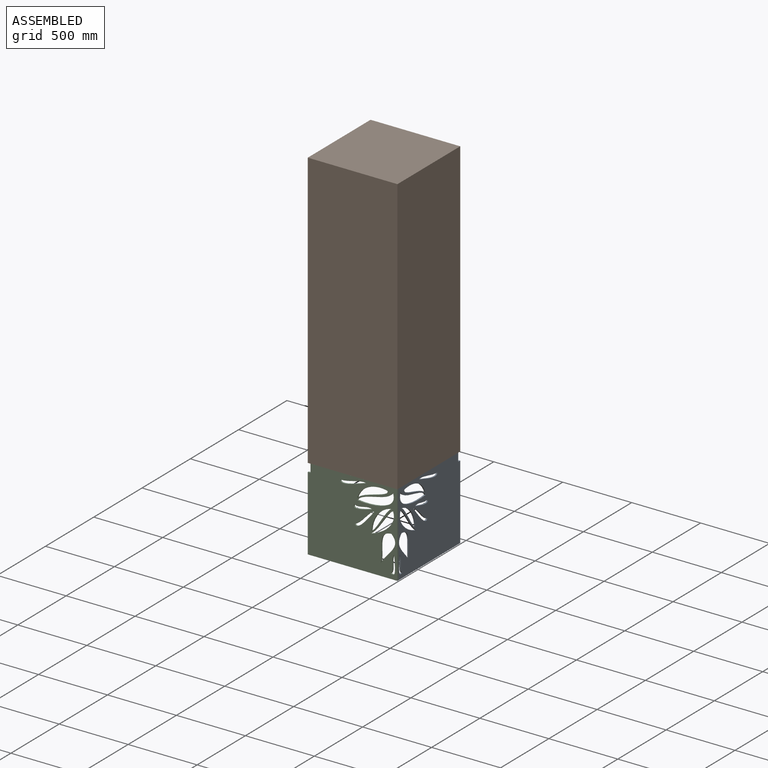
[diagram: assembled view]
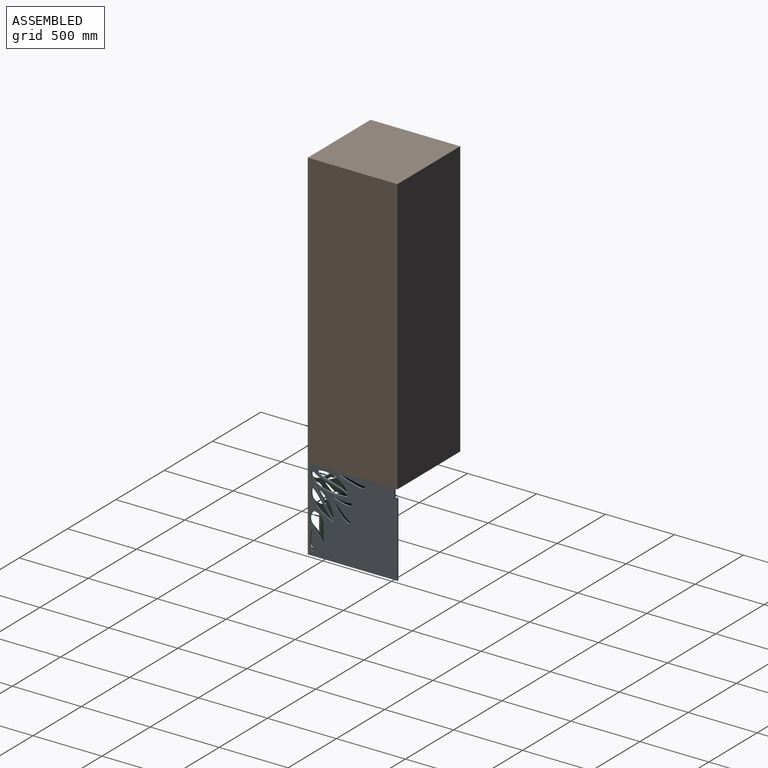
[diagram: assembled view, second angle]
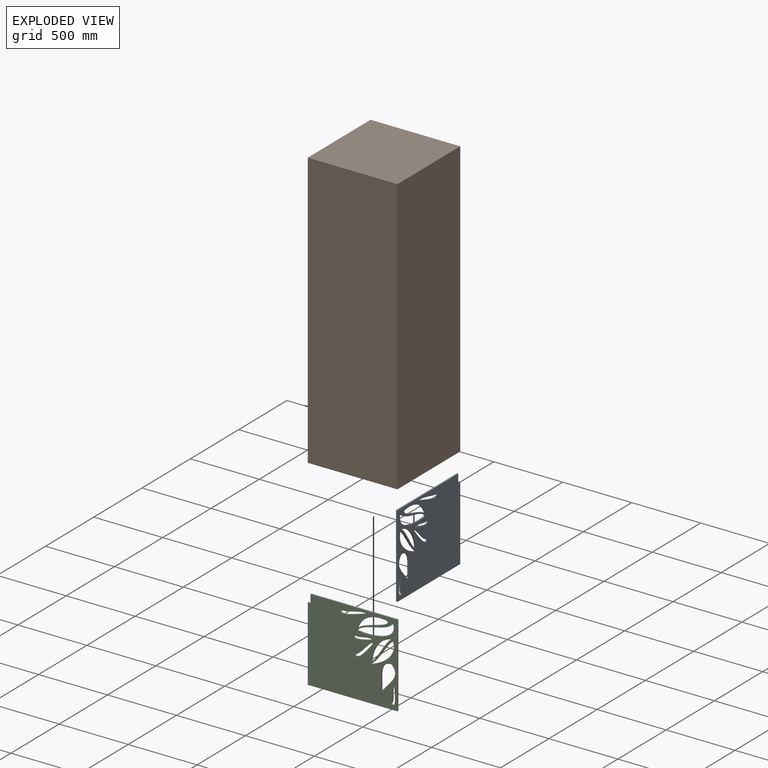
[diagram: exploded view]
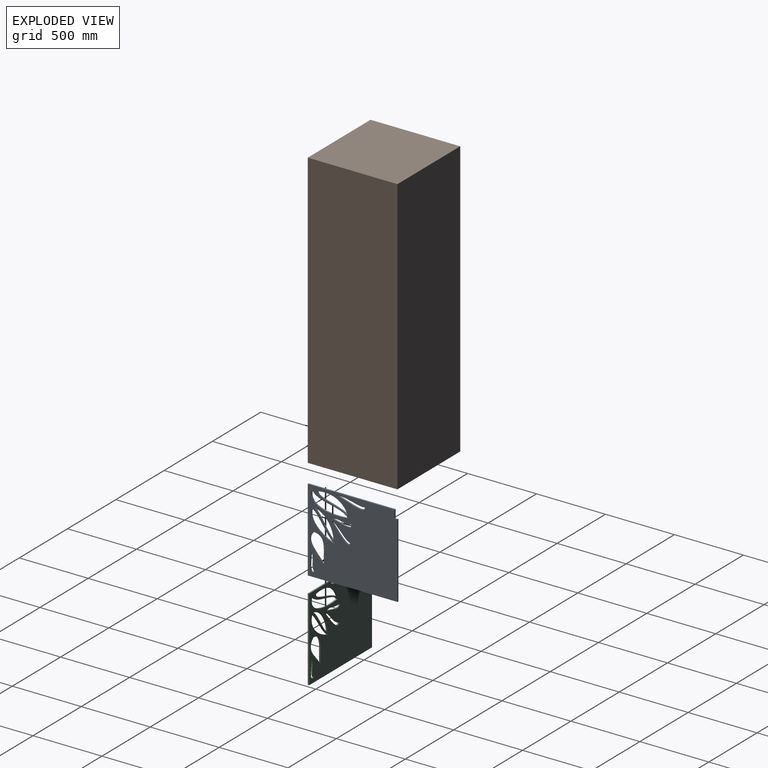
[diagram: exploded view, second angle]
ASSEMBLY  parts=3 mates=2
PART A: 26 faces, bbox 650.7x600x10 mm
  f0: plane 60x10mm, normal (-1,0,0), area 600mm2, adj f1,f23,f24,f25
  f1: plane 630x10mm, normal (0,-1,0), area 6300mm2, adj f0,f2,f24,f25
  f2: plane 600x10mm, normal (1,0,0), area 6000mm2, adj f1,f3,f24,f25
  f3: plane 650x10mm, normal (0,1,0), area 6500mm2, adj f2,f4,f24,f25
  f4: plane 540x10mm, normal (-1,0,0), area 5400mm2, adj f3,f23,f24,f25
  f5: extruded ~129.23x12.11mm, area 1323.8mm2, adj f14,f24,f25
  f6: extruded ~140.81x115.79mm, area 1847.8mm2, adj f15,f24,f25
  f7: extruded ~186.58x27.74mm, area 1899.6mm2, adj f16,f24,f25
  f8: extruded ~127.28x22.38mm, area 1323.8mm2, adj f17,f24,f25
  f9: extruded ~181.38x144.51mm, area 2501.8mm2, adj f18,f24,f25
  f10: extruded ~219.08x110.05mm, area 2669mm2, adj f19,f24,f25
  f11: extruded ~257.6x116.8mm, area 2908.2mm2, adj f20,f24,f25
  f12: extruded ~212.35x77.29mm, area 2546.7mm2, adj f21,f24,f25
  f13: extruded ~189.73x166.66mm, area 2761.3mm2, adj f22,f24,f25
  f14: extruded ~132.16x24.05mm, area 1533.7mm2, adj f5,f24,f25
  f15: extruded ~140.81x127.76mm, area 2025.2mm2, adj f6,f24,f25
  f16: extruded ~187.31x43mm, area 2066.5mm2, adj f7,f24,f25
  f17: extruded ~132.26x28.53mm, area 1533.7mm2, adj f8,f24,f25
  f18: extruded ~181.38x144.51mm, area 2338.9mm2, adj f9,f24,f25
  f19: extruded ~219.58x103.55mm, area 2512.4mm2, adj f10,f24,f25
  f20: extruded ~263.8x121.38mm, area 3354.8mm2, adj f11,f24,f25
  f21: extruded ~212.35x104.42mm, area 2546.7mm2, adj f12,f24,f25
  f22: extruded ~189.73x160.56mm, area 2501.3mm2, adj f13,f24,f25
  f23: plane 20x10mm, normal (0,-1,0), area 200mm2, adj f0,f4,f24,f25
  f24: plane 650.73x600mm, normal (0,0,1), area 330358.9mm2, adj f0,f1,f2,f3,f4,f5,f6,f7
  f25: plane 650.73x600mm, normal (0,0,-1), area 330358.9mm2, adj f0,f1,f2,f3,f4,f5,f6,f7
PART B: 6 faces, bbox 650x650x2000 mm
  f0: plane 2000x650mm, normal (0,1,0), area 1300000mm2, adj f1,f3,f4,f5
  f1: plane 2000x650mm, normal (-1,0,0), area 1300000mm2, adj f0,f2,f4,f5
  f2: plane 2000x650mm, normal (0,-1,0), area 1300000mm2, adj f1,f3,f4,f5
  f3: plane 2000x650mm, normal (1,0,0), area 1300000mm2, adj f0,f2,f4,f5
  f4: plane 650x650mm, normal (0,0,1), area 422500mm2, adj f0,f1,f2,f3
  f5: plane 650x650mm, normal (0,0,-1), area 422500mm2, adj f0,f1,f2,f3
PART C: same geometry as A
PLACE A rot(axis=(-0.58,0.58,-0.58),120deg) t=(186.38,173.58,-1083.75)mm
PLACE B t=(122.26,-368.03,-999.87)mm fixed
PLACE C rot(axis=(-1,0,0),90deg) t=(-397.1,-419.89,-1083.75)mm
MATE fastened C.f1 <-> B.f5  axis (0,0,1) through (196.38,-409.89,-999.87)mm
MATE fastened A.f1 <-> B.f5  axis (0,0,1) through (196.38,-419.89,-999.87)mm
